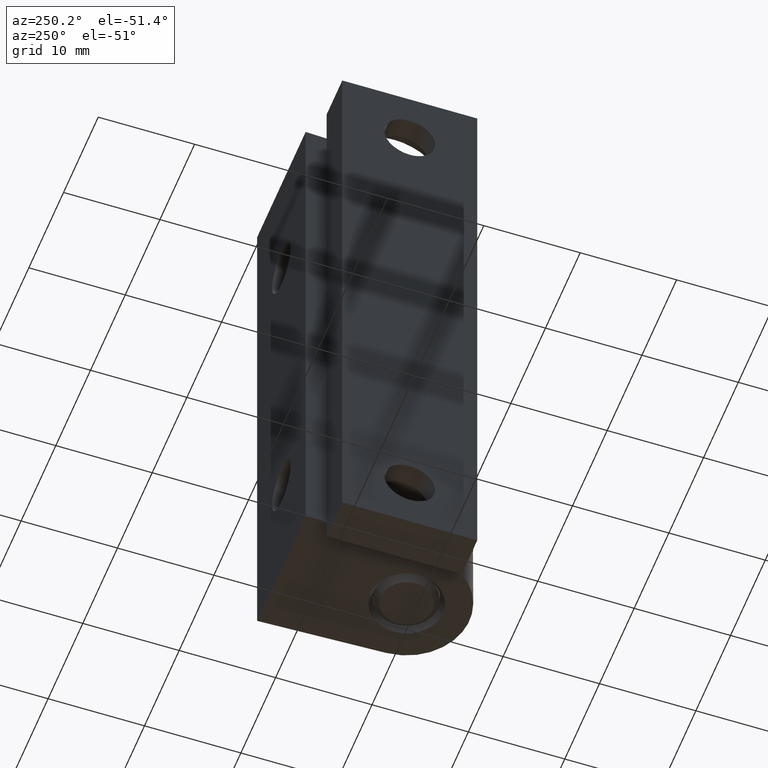
[diagram: clean part render]
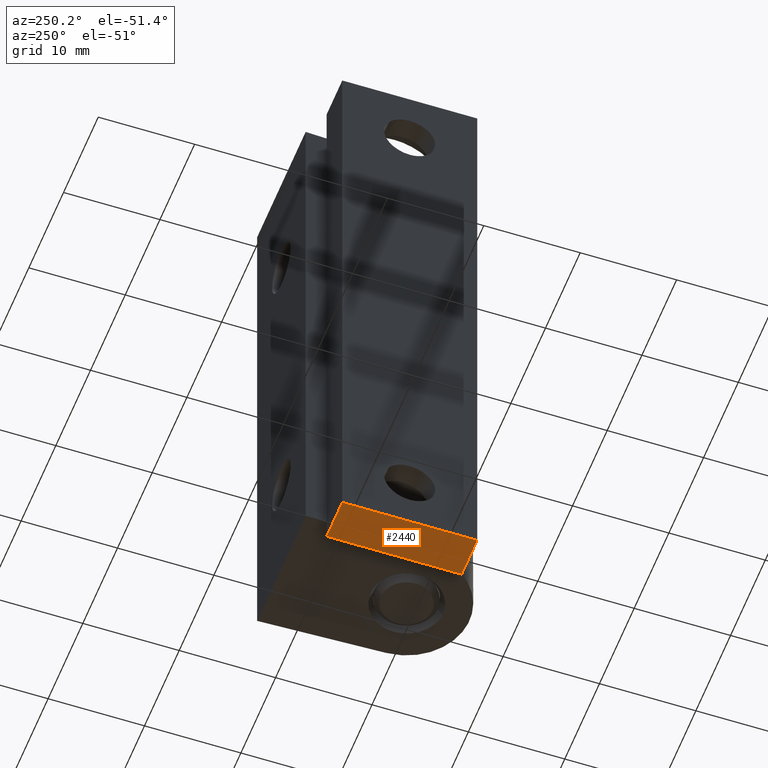
[diagram: same view with one face highlighted and labeled with its STEP entity id]
A machine part, auxiliary view. The second image highlights one B-rep face of the part: STEP entity #2440.
In plain terms, the highlighted face is a freeform B-spline surface patch.
Its self-contained STEP definition (entity closure, byte-faithful):
#2405=CARTESIAN_POINT('',(-12.224775978274449,-3.699300279994609,-3.000000142491785));
#2406=CARTESIAN_POINT('',(-7.275225551422921,-3.699300279994609,-3.000000142491785));
#2407=CARTESIAN_POINT('',(-12.224775978274449,11.699300910313699,-3.000000142491785));
#2408=CARTESIAN_POINT('',(-7.275225551422921,11.699300910313699,-3.000000142491785));
#2409=B_SPLINE_SURFACE_WITH_KNOTS('',1,1,((#2405,#2407),(#2406,#2408)),.UNSPECIFIED.,.F.,.F.,.U.,(2,2),(2,2),(0.0,4.949550426851525),(0.0,15.398601190308311),.UNSPECIFIED.);
#2410=CARTESIAN_POINT('',(-7.500000356230890,-3.000000142492370,-3.000000142491800));
#2411=VERTEX_POINT('',#2410);
#2412=CARTESIAN_POINT('',(-12.000000569969419,-3.000000142492370,-3.000000142491800));
#2413=VERTEX_POINT('',#2412);
#2414=CARTESIAN_POINT('',(-7.500000356230890,-3.000000142492370,-3.000000142491800));
#2415=CARTESIAN_POINT('',(-12.000000569969419,-3.000000142492370,-3.000000142491800));
#2416=QUASI_UNIFORM_CURVE('',1,(#2414,#2415),.UNSPECIFIED.,.F.,.U.);
#2417=EDGE_CURVE('',#2411,#2413,#2416,.T.);
#2418=ORIENTED_EDGE('',*,*,#2417,.T.);
#2419=CARTESIAN_POINT('',(-12.000000569969419,11.000000522471939,-3.000000142491800));
#2420=VERTEX_POINT('',#2419);
#2421=CARTESIAN_POINT('',(-12.000000569969419,-3.000000142492370,-3.000000142491800));
#2422=CARTESIAN_POINT('',(-12.000000569969419,11.000000522471939,-3.000000142491800));
#2423=QUASI_UNIFORM_CURVE('',1,(#2421,#2422),.UNSPECIFIED.,.F.,.U.);
#2424=EDGE_CURVE('',#2413,#2420,#2423,.T.);
#2425=ORIENTED_EDGE('',*,*,#2424,.T.);
#2426=CARTESIAN_POINT('',(-7.500000356230890,11.000000522471939,-3.000000142491800));
#2427=VERTEX_POINT('',#2426);
#2428=CARTESIAN_POINT('',(-12.000000569969419,11.000000522471939,-3.000000142491800));
#2429=CARTESIAN_POINT('',(-7.500000356230890,11.000000522471939,-3.000000142491800));
#2430=QUASI_UNIFORM_CURVE('',1,(#2428,#2429),.UNSPECIFIED.,.F.,.U.);
#2431=EDGE_CURVE('',#2420,#2427,#2430,.T.);
#2432=ORIENTED_EDGE('',*,*,#2431,.T.);
#2433=CARTESIAN_POINT('',(-7.500000356230890,11.000000522471939,-3.000000142491800));
#2434=CARTESIAN_POINT('',(-7.500000356230890,-3.000000142492370,-3.000000142491800));
#2435=QUASI_UNIFORM_CURVE('',1,(#2433,#2434),.UNSPECIFIED.,.F.,.U.);
#2436=EDGE_CURVE('',#2427,#2411,#2435,.T.);
#2437=ORIENTED_EDGE('',*,*,#2436,.T.);
#2438=EDGE_LOOP('',(#2418,#2425,#2432,#2437));
#2439=FACE_OUTER_BOUND('',#2438,.T.);
#2440=ADVANCED_FACE('',(#2439),#2409,.F.);